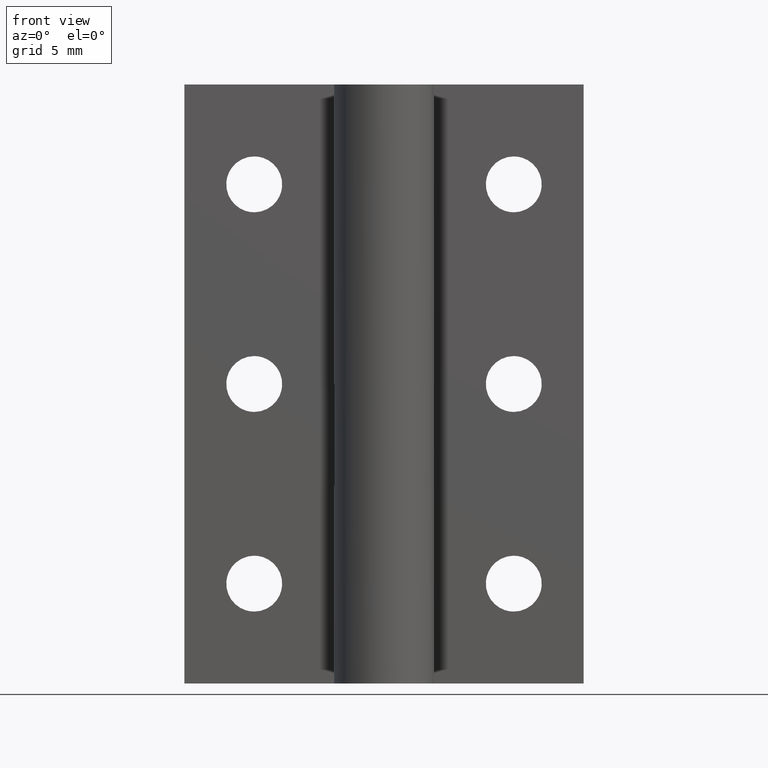
[diagram: clean part render]
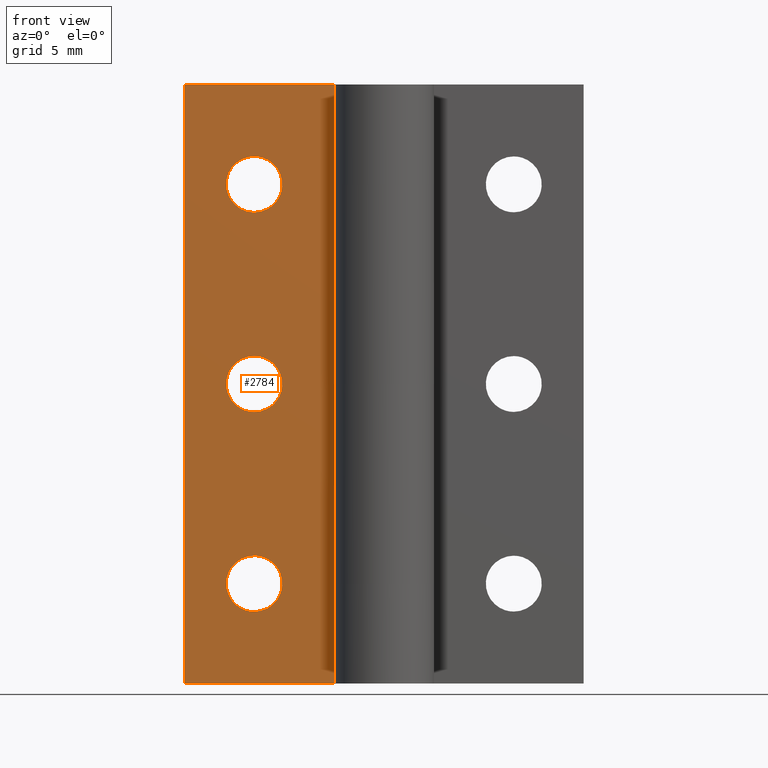
[diagram: same view with one face highlighted and labeled with its STEP entity id]
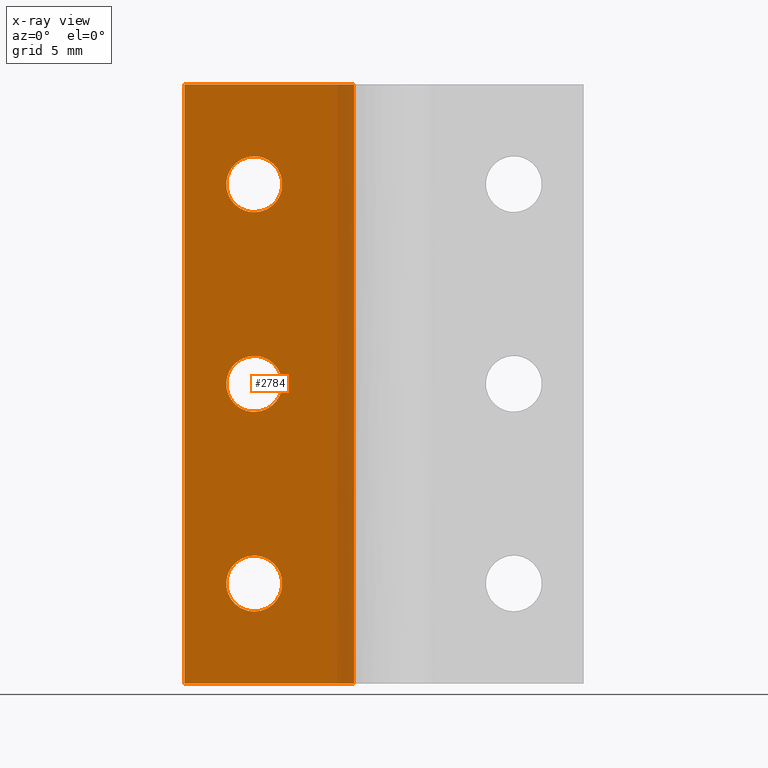
[diagram: x-ray of the same camera — body ghosted, the highlighted face saturated]
A machine part, front view. The second image highlights one B-rep face of the part: STEP entity #2784.
The next image is the same camera in x-ray: the body ghosted, the highlighted face saturated — about 11% of this face is hidden behind the body in this view.
In plain terms, the highlighted face is a freeform B-spline surface patch.
Its self-contained STEP definition (entity closure, byte-faithful):
#1734=CARTESIAN_POINT('',(-6.500000000000000,3.0,26.399999999999999));
#1735=VERTEX_POINT('',#1734);
#1736=CARTESIAN_POINT('',(-7.895684267219878,3.0,25.109842734101591));
#1737=VERTEX_POINT('',#1736);
#1738=CARTESIAN_POINT('',(-6.500000000000000,3.0,26.399999999999999));
#1739=CARTESIAN_POINT('',(-7.794146688167815,3.000000000000001,26.399999999999995));
#1740=CARTESIAN_POINT('',(-7.895684267219878,3.000000000000000,25.109842734101587));
#1748=(BOUNDED_CURVE()B_SPLINE_CURVE(2,(#1738,#1739,#1740),.UNSPECIFIED.,.F.,.U.)B_SPLINE_CURVE_WITH_KNOTS((3,3),(0.0,0.236331300612474),.UNSPECIFIED.)CURVE()GEOMETRIC_REPRESENTATION_ITEM()RATIONAL_B_SPLINE_CURVE((1.0,0.723120658628972,0.969723356129465))REPRESENTATION_ITEM(''));
#1749=EDGE_CURVE('',#1735,#1737,#1748,.T.);
#1790=CARTESIAN_POINT('',(-5.104315732780123,3.0,24.890157265898409));
#1791=VERTEX_POINT('',#1790);
#1797=CARTESIAN_POINT('',(-5.104315732780123,3.000000000000000,24.890157265898409));
#1798=CARTESIAN_POINT('',(-5.099999999999999,3.000000000000000,24.944993850106268));
#1799=CARTESIAN_POINT('',(-5.100000000000000,3.0,25.0));
#1800=CARTESIAN_POINT('',(-5.100000000000000,3.000000000000000,26.399999999999995));
#1801=CARTESIAN_POINT('',(-6.500000000000000,3.0,26.399999999999999));
#1809=(BOUNDED_CURVE()B_SPLINE_CURVE(2,(#1797,#1798,#1799,#1800,#1801),.UNSPECIFIED.,.F.,.U.)B_SPLINE_CURVE_WITH_KNOTS((3,2,3),(0.736331300612474,0.750000000000000,1.0),.UNSPECIFIED.)CURVE()GEOMETRIC_REPRESENTATION_ITEM()RATIONAL_B_SPLINE_CURVE((0.969723356129465,0.983986122557576,1.0,0.707106781186547,1.0))REPRESENTATION_ITEM(''));
#1810=EDGE_CURVE('',#1791,#1735,#1809,.T.);
#1833=CARTESIAN_POINT('',(-6.500000000000000,3.0,23.600000000000001));
#1834=VERTEX_POINT('',#1833);
#1835=CARTESIAN_POINT('',(-7.895684267219878,3.000000000000000,25.109842734101591));
#1836=CARTESIAN_POINT('',(-7.900000000000000,3.000000000000001,25.055006149893732));
#1837=CARTESIAN_POINT('',(-7.900000000000000,3.0,25.0));
#1838=CARTESIAN_POINT('',(-7.899999999999999,3.000000000000000,23.600000000000001));
#1839=CARTESIAN_POINT('',(-6.500000000000000,3.0,23.600000000000001));
#1847=(BOUNDED_CURVE()B_SPLINE_CURVE(2,(#1835,#1836,#1837,#1838,#1839),.UNSPECIFIED.,.F.,.U.)B_SPLINE_CURVE_WITH_KNOTS((3,2,3),(0.236331300612474,0.250000000000000,0.500000000000000),.UNSPECIFIED.)CURVE()GEOMETRIC_REPRESENTATION_ITEM()RATIONAL_B_SPLINE_CURVE((0.969723356129465,0.983986122557576,1.0,0.707106781186547,1.0))REPRESENTATION_ITEM(''));
#1848=EDGE_CURVE('',#1737,#1834,#1847,.T.);
#1850=CARTESIAN_POINT('',(-6.500000000000000,3.0,23.600000000000001));
#1851=CARTESIAN_POINT('',(-5.205853311832186,3.0,23.599999999999998));
#1852=CARTESIAN_POINT('',(-5.104315732780123,3.000000000000000,24.890157265898409));
#1860=(BOUNDED_CURVE()B_SPLINE_CURVE(2,(#1850,#1851,#1852),.UNSPECIFIED.,.F.,.U.)B_SPLINE_CURVE_WITH_KNOTS((3,3),(0.500000000000000,0.736331300612473),.UNSPECIFIED.)CURVE()GEOMETRIC_REPRESENTATION_ITEM()RATIONAL_B_SPLINE_CURVE((1.0,0.723120658628972,0.969723356129464))REPRESENTATION_ITEM(''));
#1861=EDGE_CURVE('',#1834,#1791,#1860,.T.);
#1916=CARTESIAN_POINT('',(-6.500000000000000,3.0,16.399999999999999));
#1917=VERTEX_POINT('',#1916);
#1918=CARTESIAN_POINT('',(-7.895684267219878,3.0,15.109842734101591));
#1919=VERTEX_POINT('',#1918);
#1920=CARTESIAN_POINT('',(-6.500000000000000,3.0,16.399999999999999));
#1921=CARTESIAN_POINT('',(-7.794146688167817,3.000000000000000,16.399999999999999));
#1922=CARTESIAN_POINT('',(-7.895684267219878,2.999999999999999,15.109842734101596));
#1930=(BOUNDED_CURVE()B_SPLINE_CURVE(2,(#1920,#1921,#1922),.UNSPECIFIED.,.F.,.U.)B_SPLINE_CURVE_WITH_KNOTS((3,3),(0.0,0.236331300612474),.UNSPECIFIED.)CURVE()GEOMETRIC_REPRESENTATION_ITEM()RATIONAL_B_SPLINE_CURVE((1.0,0.723120658628971,0.969723356129466))REPRESENTATION_ITEM(''));
#1931=EDGE_CURVE('',#1917,#1919,#1930,.T.);
#1972=CARTESIAN_POINT('',(-5.104315732780123,3.0,14.890157265898409));
#1973=VERTEX_POINT('',#1972);
#1979=CARTESIAN_POINT('',(-5.104315732780123,3.0,14.890157265898406));
#1980=CARTESIAN_POINT('',(-5.100000000000001,3.000000000000001,14.944993850106270));
#1981=CARTESIAN_POINT('',(-5.100000000000000,3.0,15.0));
#1982=CARTESIAN_POINT('',(-5.100000000000000,3.000000000000000,16.400000000000002));
#1983=CARTESIAN_POINT('',(-6.500000000000000,3.0,16.399999999999999));
#1991=(BOUNDED_CURVE()B_SPLINE_CURVE(2,(#1979,#1980,#1981,#1982,#1983),.UNSPECIFIED.,.F.,.U.)B_SPLINE_CURVE_WITH_KNOTS((3,2,3),(0.736331300612474,0.750000000000000,1.0),.UNSPECIFIED.)CURVE()GEOMETRIC_REPRESENTATION_ITEM()RATIONAL_B_SPLINE_CURVE((0.969723356129466,0.983986122557576,1.0,0.707106781186547,1.0))REPRESENTATION_ITEM(''));
#1992=EDGE_CURVE('',#1973,#1917,#1991,.T.);
#2015=CARTESIAN_POINT('',(-6.500000000000000,3.0,13.600000000000000));
#2016=VERTEX_POINT('',#2015);
#2017=CARTESIAN_POINT('',(-7.895684267219878,2.999999999999999,15.109842734101596));
#2018=CARTESIAN_POINT('',(-7.900000000000000,3.000000000000000,15.055006149893726));
#2019=CARTESIAN_POINT('',(-7.900000000000000,3.0,15.0));
#2020=CARTESIAN_POINT('',(-7.899999999999999,3.000000000000000,13.600000000000001));
#2021=CARTESIAN_POINT('',(-6.500000000000000,3.0,13.600000000000000));
#2029=(BOUNDED_CURVE()B_SPLINE_CURVE(2,(#2017,#2018,#2019,#2020,#2021),.UNSPECIFIED.,.F.,.U.)B_SPLINE_CURVE_WITH_KNOTS((3,2,3),(0.236331300612474,0.250000000000000,0.500000000000000),.UNSPECIFIED.)CURVE()GEOMETRIC_REPRESENTATION_ITEM()RATIONAL_B_SPLINE_CURVE((0.969723356129466,0.983986122557576,1.0,0.707106781186547,1.0))REPRESENTATION_ITEM(''));
#2030=EDGE_CURVE('',#1919,#2016,#2029,.T.);
#2032=CARTESIAN_POINT('',(-6.500000000000000,3.0,13.600000000000000));
#2033=CARTESIAN_POINT('',(-5.205853311832186,3.0,13.600000000000000));
#2034=CARTESIAN_POINT('',(-5.104315732780123,3.000000000000000,14.890157265898413));
#2042=(BOUNDED_CURVE()B_SPLINE_CURVE(2,(#2032,#2033,#2034),.UNSPECIFIED.,.F.,.U.)B_SPLINE_CURVE_WITH_KNOTS((3,3),(0.500000000000000,0.736331300612473),.UNSPECIFIED.)CURVE()GEOMETRIC_REPRESENTATION_ITEM()RATIONAL_B_SPLINE_CURVE((1.0,0.723120658628972,0.969723356129464))REPRESENTATION_ITEM(''));
#2043=EDGE_CURVE('',#2016,#1973,#2042,.T.);
#2098=CARTESIAN_POINT('',(-6.500000000000000,3.0,6.400000000000000));
#2099=VERTEX_POINT('',#2098);
#2100=CARTESIAN_POINT('',(-7.895684267219878,3.0,5.109842734101592));
#2101=VERTEX_POINT('',#2100);
#2102=CARTESIAN_POINT('',(-6.500000000000000,3.0,6.400000000000000));
#2103=CARTESIAN_POINT('',(-7.794146688167816,3.000000000000000,6.400000000000000));
#2104=CARTESIAN_POINT('',(-7.895684267219878,3.0,5.109842734101593));
#2112=(BOUNDED_CURVE()B_SPLINE_CURVE(2,(#2102,#2103,#2104),.UNSPECIFIED.,.F.,.U.)B_SPLINE_CURVE_WITH_KNOTS((3,3),(0.0,0.236331300612474),.UNSPECIFIED.)CURVE()GEOMETRIC_REPRESENTATION_ITEM()RATIONAL_B_SPLINE_CURVE((1.0,0.723120658628971,0.969723356129466))REPRESENTATION_ITEM(''));
#2113=EDGE_CURVE('',#2099,#2101,#2112,.T.);
#2154=CARTESIAN_POINT('',(-5.104315732780123,3.0,4.890157265898408));
#2155=VERTEX_POINT('',#2154);
#2161=CARTESIAN_POINT('',(-5.104315732780123,3.000000000000000,4.890157265898408));
#2162=CARTESIAN_POINT('',(-5.100000000000001,3.0,4.944993850106270));
#2163=CARTESIAN_POINT('',(-5.100000000000000,3.0,5.0));
#2164=CARTESIAN_POINT('',(-5.100000000000000,3.000000000000000,6.400000000000000));
#2165=CARTESIAN_POINT('',(-6.500000000000000,3.0,6.400000000000000));
#2173=(BOUNDED_CURVE()B_SPLINE_CURVE(2,(#2161,#2162,#2163,#2164,#2165),.UNSPECIFIED.,.F.,.U.)B_SPLINE_CURVE_WITH_KNOTS((3,2,3),(0.736331300612474,0.750000000000000,1.0),.UNSPECIFIED.)CURVE()GEOMETRIC_REPRESENTATION_ITEM()RATIONAL_B_SPLINE_CURVE((0.969723356129465,0.983986122557576,1.0,0.707106781186547,1.0))REPRESENTATION_ITEM(''));
#2174=EDGE_CURVE('',#2155,#2099,#2173,.T.);
#2197=CARTESIAN_POINT('',(-6.500000000000000,3.0,3.600000000000000));
#2198=VERTEX_POINT('',#2197);
#2199=CARTESIAN_POINT('',(-7.895684267219878,3.0,5.109842734101593));
#2200=CARTESIAN_POINT('',(-7.900000000000000,3.000000000000001,5.055006149893730));
#2201=CARTESIAN_POINT('',(-7.900000000000000,3.0,5.0));
#2202=CARTESIAN_POINT('',(-7.899999999999999,3.000000000000000,3.600000000000000));
#2203=CARTESIAN_POINT('',(-6.500000000000000,3.0,3.600000000000000));
#2211=(BOUNDED_CURVE()B_SPLINE_CURVE(2,(#2199,#2200,#2201,#2202,#2203),.UNSPECIFIED.,.F.,.U.)B_SPLINE_CURVE_WITH_KNOTS((3,2,3),(0.236331300612474,0.250000000000000,0.500000000000000),.UNSPECIFIED.)CURVE()GEOMETRIC_REPRESENTATION_ITEM()RATIONAL_B_SPLINE_CURVE((0.969723356129466,0.983986122557576,1.0,0.707106781186547,1.0))REPRESENTATION_ITEM(''));
#2212=EDGE_CURVE('',#2101,#2198,#2211,.T.);
#2214=CARTESIAN_POINT('',(-6.500000000000000,3.0,3.600000000000000));
#2215=CARTESIAN_POINT('',(-5.205853311832186,3.0,3.600000000000000));
#2216=CARTESIAN_POINT('',(-5.104315732780123,3.000000000000000,4.890157265898408));
#2224=(BOUNDED_CURVE()B_SPLINE_CURVE(2,(#2214,#2215,#2216),.UNSPECIFIED.,.F.,.U.)B_SPLINE_CURVE_WITH_KNOTS((3,3),(0.500000000000000,0.736331300612473),.UNSPECIFIED.)CURVE()GEOMETRIC_REPRESENTATION_ITEM()RATIONAL_B_SPLINE_CURVE((1.0,0.723120658628972,0.969723356129464))REPRESENTATION_ITEM(''));
#2225=EDGE_CURVE('',#2198,#2155,#2224,.T.);
#2312=CARTESIAN_POINT('',(-1.500000000000000,3.0,15.0));
#2313=VERTEX_POINT('',#2312);
#2390=CARTESIAN_POINT('',(-1.500000000000000,3.0,25.0));
#2391=VERTEX_POINT('',#2390);
#2453=CARTESIAN_POINT('',(-1.500000000000000,3.0,25.0));
#2454=CARTESIAN_POINT('',(-1.500000000000000,3.0,15.0));
#2455=QUASI_UNIFORM_CURVE('',1,(#2453,#2454),.UNSPECIFIED.,.F.,.U.);
#2456=EDGE_CURVE('',#2391,#2313,#2455,.T.);
#2503=CARTESIAN_POINT('',(-1.500000000000000,3.0,5.0));
#2504=VERTEX_POINT('',#2503);
#2566=CARTESIAN_POINT('',(-1.500000000000000,3.0,0.0));
#2567=VERTEX_POINT('',#2566);
#2568=CARTESIAN_POINT('',(-1.500000000000000,3.0,5.0));
#2569=CARTESIAN_POINT('',(-1.500000000000000,3.0,0.0));
#2570=QUASI_UNIFORM_CURVE('',1,(#2568,#2569),.UNSPECIFIED.,.F.,.U.);
#2571=EDGE_CURVE('',#2504,#2567,#2570,.T.);
#2595=CARTESIAN_POINT('',(-10.0,3.0,0.0));
#2596=VERTEX_POINT('',#2595);
#2597=CARTESIAN_POINT('',(-1.500000000000000,3.0,0.0));
#2598=CARTESIAN_POINT('',(-10.0,3.0,0.0));
#2599=QUASI_UNIFORM_CURVE('',1,(#2597,#2598),.UNSPECIFIED.,.F.,.U.);
#2600=EDGE_CURVE('',#2567,#2596,#2599,.T.);
#2653=CARTESIAN_POINT('',(-10.0,3.0,30.0));
#2654=VERTEX_POINT('',#2653);
#2660=CARTESIAN_POINT('',(-1.500000000000000,3.0,30.0));
#2661=VERTEX_POINT('',#2660);
#2662=CARTESIAN_POINT('',(-1.500000000000000,3.0,30.0));
#2663=CARTESIAN_POINT('',(-10.0,3.0,30.0));
#2664=QUASI_UNIFORM_CURVE('',1,(#2662,#2663),.UNSPECIFIED.,.F.,.U.);
#2665=EDGE_CURVE('',#2661,#2654,#2664,.T.);
#2730=CARTESIAN_POINT('',(-10.0,3.0,30.0));
#2731=CARTESIAN_POINT('',(-10.0,3.0,0.0));
#2732=QUASI_UNIFORM_CURVE('',1,(#2730,#2731),.UNSPECIFIED.,.F.,.U.);
#2733=EDGE_CURVE('',#2654,#2596,#2732,.T.);
#2744=CARTESIAN_POINT('',(-10.424574983525350,3.0,31.498499941854181));
#2745=CARTESIAN_POINT('',(-10.424574983525350,3.0,-1.498500746516883));
#2746=CARTESIAN_POINT('',(-1.075424788486883,3.0,31.498499941854181));
#2747=CARTESIAN_POINT('',(-1.075424788486883,3.0,-1.498500746516883));
#2748=B_SPLINE_SURFACE_WITH_KNOTS('',1,1,((#2744,#2746),(#2745,#2747)),.UNSPECIFIED.,.F.,.F.,.U.,(2,2),(2,2),(0.0,32.997000688371060),(0.0,9.349150195038467),.UNSPECIFIED.);
#2749=ORIENTED_EDGE('',*,*,#2600,.F.);
#2750=ORIENTED_EDGE('',*,*,#2571,.F.);
#2751=CARTESIAN_POINT('',(-1.500000000000000,3.0,15.0));
#2752=CARTESIAN_POINT('',(-1.500000000000000,3.0,5.0));
#2753=QUASI_UNIFORM_CURVE('',1,(#2751,#2752),.UNSPECIFIED.,.F.,.U.);
#2754=EDGE_CURVE('',#2313,#2504,#2753,.T.);
#2755=ORIENTED_EDGE('',*,*,#2754,.F.);
#2756=ORIENTED_EDGE('',*,*,#2456,.F.);
#2757=CARTESIAN_POINT('',(-1.500000000000000,3.0,30.0));
#2758=CARTESIAN_POINT('',(-1.500000000000000,3.0,25.0));
#2759=QUASI_UNIFORM_CURVE('',1,(#2757,#2758),.UNSPECIFIED.,.F.,.U.);
#2760=EDGE_CURVE('',#2661,#2391,#2759,.T.);
#2761=ORIENTED_EDGE('',*,*,#2760,.F.);
#2762=ORIENTED_EDGE('',*,*,#2665,.T.);
#2763=ORIENTED_EDGE('',*,*,#2733,.T.);
#2764=EDGE_LOOP('',(#2749,#2750,#2755,#2756,#2761,#2762,#2763));
#2765=FACE_OUTER_BOUND('',#2764,.T.);
#2766=ORIENTED_EDGE('',*,*,#2225,.F.);
#2767=ORIENTED_EDGE('',*,*,#2212,.F.);
#2768=ORIENTED_EDGE('',*,*,#2113,.F.);
#2769=ORIENTED_EDGE('',*,*,#2174,.F.);
#2770=EDGE_LOOP('',(#2766,#2767,#2768,#2769));
#2771=FACE_BOUND('',#2770,.T.);
#2772=ORIENTED_EDGE('',*,*,#2043,.F.);
#2773=ORIENTED_EDGE('',*,*,#2030,.F.);
#2774=ORIENTED_EDGE('',*,*,#1931,.F.);
#2775=ORIENTED_EDGE('',*,*,#1992,.F.);
#2776=EDGE_LOOP('',(#2772,#2773,#2774,#2775));
#2777=FACE_BOUND('',#2776,.T.);
#2778=ORIENTED_EDGE('',*,*,#1861,.F.);
#2779=ORIENTED_EDGE('',*,*,#1848,.F.);
#2780=ORIENTED_EDGE('',*,*,#1749,.F.);
#2781=ORIENTED_EDGE('',*,*,#1810,.F.);
#2782=EDGE_LOOP('',(#2778,#2779,#2780,#2781));
#2783=FACE_BOUND('',#2782,.T.);
#2784=ADVANCED_FACE('',(#2765,#2771,#2777,#2783),#2748,.T.);